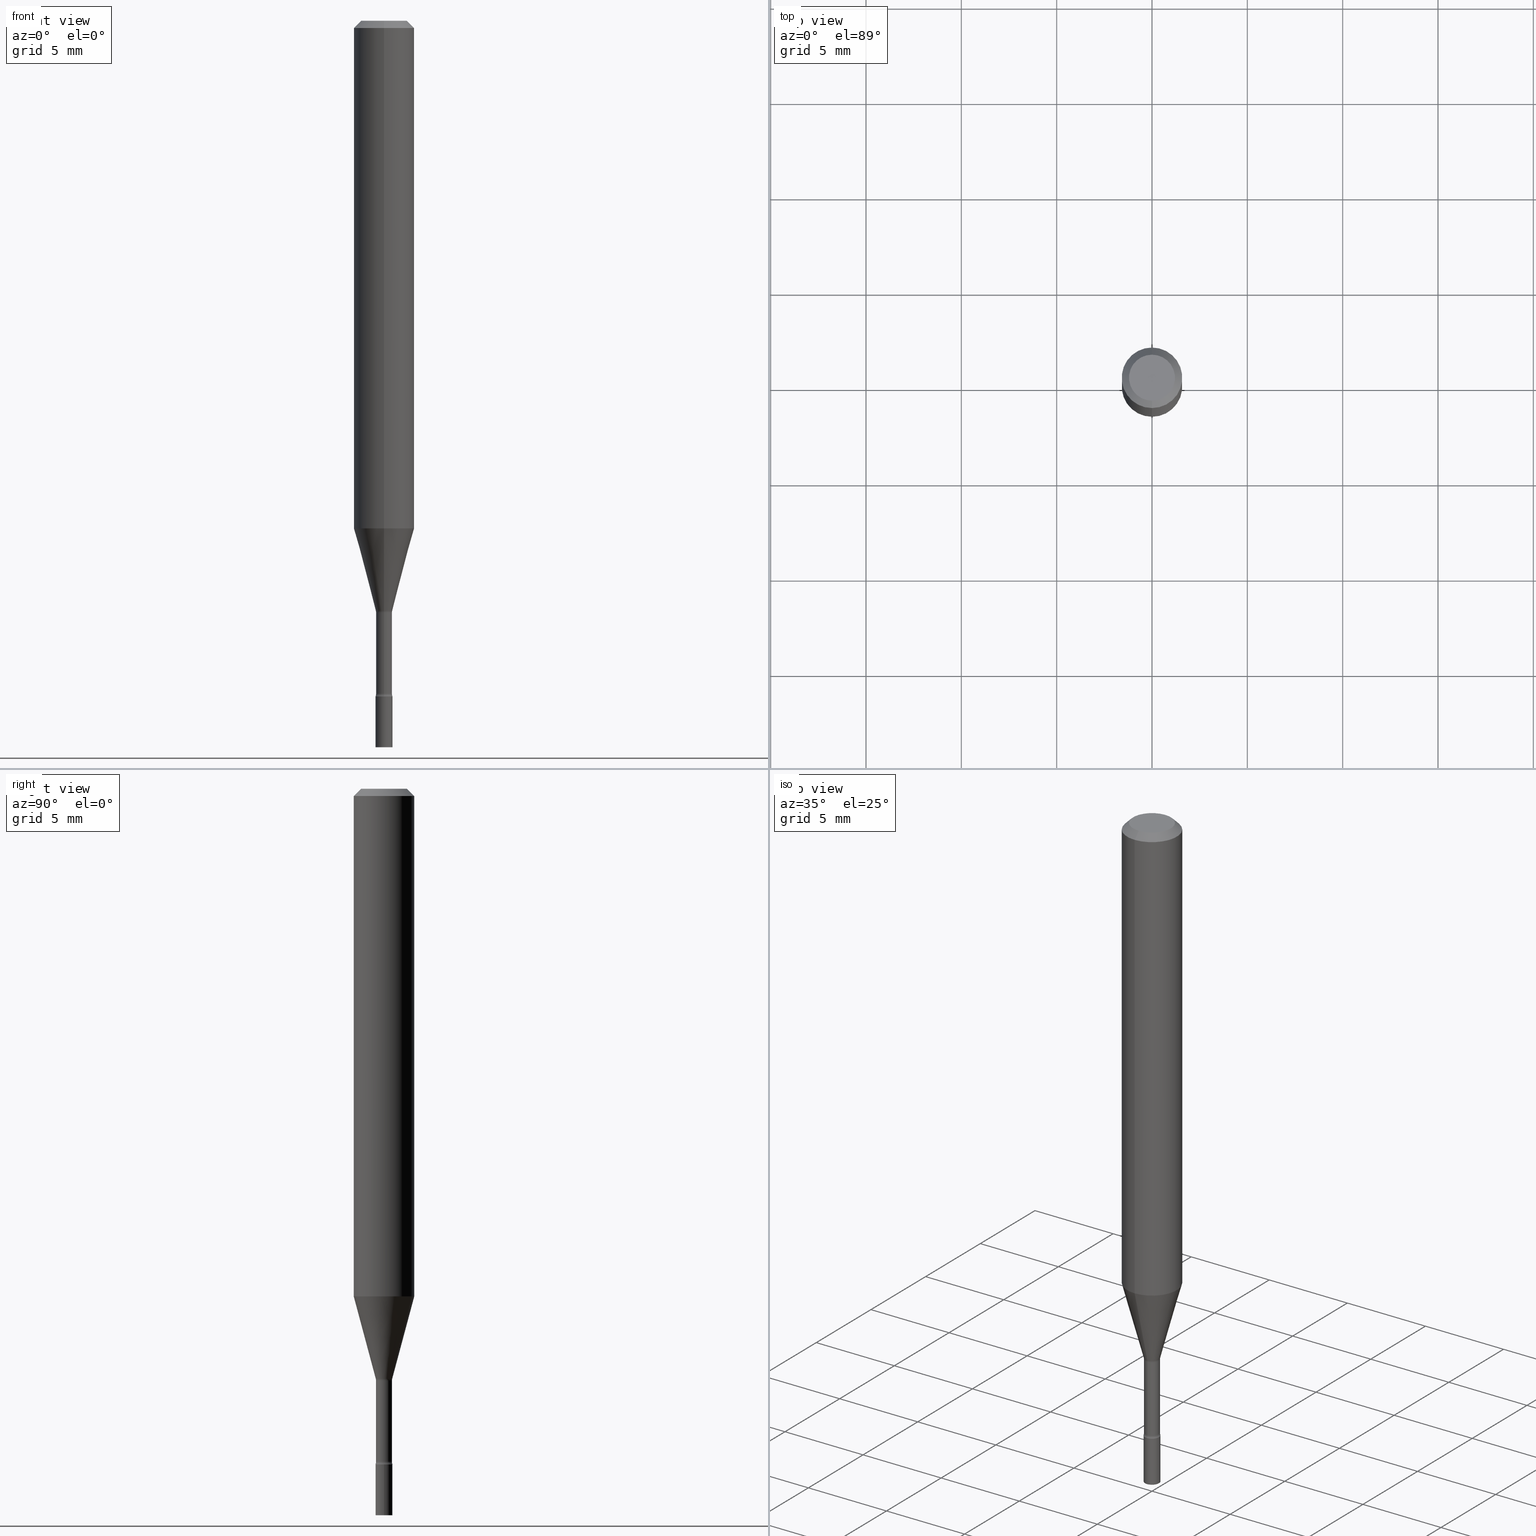
[diagram: canonical four-view strip — front | top / right | iso, engineering-drawing reading convention]
A machine part, canonical four-view strip (front | top / right | iso — engineering-drawing reading convention). The complete STEP part file that produces these views, byte-faithful:
ISO-10303-21;
HEADER;
FILE_DESCRIPTION (( 'STEP AP203' ),
    '1' );
FILE_NAME ('04272.STEP',
    '2024-03-08T22:44:35',
    ( '' ),
    ( '' ),
    'SwSTEP 2.0',
    'SolidWorks 2023',
    '' );
FILE_SCHEMA (( 'CONFIG_CONTROL_DESIGN' ));
ENDSEC;

DATA;
#1 =( LENGTH_UNIT ( ) NAMED_UNIT ( * ) SI_UNIT ( $, .METRE. ) );
#2 = CARTESIAN_POINT ( 'NONE',  ( 2.978778786374188568E-29, -4.252987952059016187E-15, -1.218092501787273241 ) ) ;
#3 = PERSON_AND_ORGANIZATION_ROLE ( 'creator' ) ;
#4 = DIRECTION ( 'NONE',  ( -6.982962677686266711E-15, -1.000000000000000000, 3.491514762482098912E-15 ) ) ;
#5 = AXIS2_PLACEMENT_3D ( 'NONE', #331, #170, #252 ) ;
#6 = APPROVAL_PERSON_ORGANIZATION ( #436, #224, #130 ) ;
#7 = FACE_OUTER_BOUND ( 'NONE', #451, .T. ) ;
#8 = ADVANCED_FACE ( 'NONE', ( #115 ), #124, .T. ) ;
#9 = DIRECTION ( 'NONE',  ( -2.445445466582800548E-29, 3.491514762482098518E-15, 1.000000000000000000 ) ) ;
#10 = LINE ( 'NONE', #336, #354 ) ;
#11 = ORIENTED_EDGE ( 'NONE', *, *, #298, .T. ) ;
#12 = AXIS2_PLACEMENT_3D ( 'NONE', #2, #445, #94 ) ;
#13 = ADVANCED_FACE ( 'NONE', ( #437 ), #71, .T. ) ;
#14 = AXIS2_PLACEMENT_3D ( 'NONE', #175, #92, #291 ) ;
#15 = DATE_TIME_ROLE ( 'classification_date' ) ;
#16 = SECURITY_CLASSIFICATION ( '', '', #39 ) ;
#17 = CARTESIAN_POINT ( 'NONE',  ( 2.988301224687461483E-29, -4.266502166966715248E-15, -1.221974787463810941 ) ) ;
#18 = ORIENTED_EDGE ( 'NONE', *, *, #151, .F. ) ;
#19 = MANIFOLD_SOLID_BREP ( 'Body-Move/Copy2[2]', #286 ) ;
#20 = DIRECTION ( 'NONE',  ( 1.000000000000000000, -6.982962677686265922E-15, 4.876176775795935793E-29 ) ) ;
#21 = VERTEX_POINT ( 'NONE', #481 ) ;
#22 = FACE_OUTER_BOUND ( 'NONE', #499, .T. ) ;
#23 = EDGE_LOOP ( 'NONE', ( #346, #256, #352, #381 ) ) ;
#24 = TOROIDAL_SURFACE ( 'NONE', #335, 0.03144999999999999879, 0.01499999999999998904 ) ;
#25 = DIRECTION ( 'NONE',  ( -2.445445466582800548E-29, 3.491514762482098518E-15, 1.000000000000000000 ) ) ;
#26 = ORIENTED_EDGE ( 'NONE', *, *, #200, .T. ) ;
#27 = EDGE_CURVE ( 'NONE', #374, #390, #50, .T. ) ;
#28 = DIRECTION ( 'NONE',  ( -2.445445466582800548E-29, 3.491514762482098518E-15, 1.000000000000000000 ) ) ;
#29 = EDGE_LOOP ( 'NONE', ( #273, #318, #138, #340 ) ) ;
#30 = DIRECTION ( 'NONE',  ( -6.982962677686265922E-15, -1.000000000000000000, 4.370956789862821150E-15 ) ) ;
#31 = VERTEX_POINT ( 'NONE', #490 ) ;
#32 = EDGE_CURVE ( 'NONE', #21, #31, #311, .T. ) ;
#33 = DIRECTION ( 'NONE',  ( -6.982962677686265922E-15, -1.000000000000000000, 3.491514762482098518E-15 ) ) ;
#34 = AXIS2_PLACEMENT_3D ( 'NONE', #301, #377, #20 ) ;
#35 = ORIENTED_EDGE ( 'NONE', *, *, #59, .T. ) ;
#36 = CARTESIAN_POINT ( 'NONE',  ( 3.668168199874207899E-31, -5.237272143723158550E-17, -0.01500000000000003067 ) ) ;
#37 = ORIENTED_EDGE ( 'NONE', *, *, #440, .T. ) ;
#38 = CYLINDRICAL_SURFACE ( 'NONE', #14, 0.01645000000000003057 ) ;
#39 = SECURITY_CLASSIFICATION_LEVEL ( 'unclassified' ) ;
#40 = FACE_OUTER_BOUND ( 'NONE', #316, .T. ) ;
#41 = AXIS2_PLACEMENT_3D ( 'NONE', #494, #455, #178 ) ;
#42 = EDGE_CURVE ( 'NONE', #278, #198, #285, .T. ) ;
#43 = CC_DESIGN_APPROVAL ( #224, ( #296 ) ) ;
#44 = DIRECTION ( 'NONE',  ( 0.000000000000000000, 0.000000000000000000, 1.000000000000000000 ) ) ;
#45 = FACE_OUTER_BOUND ( 'NONE', #275, .T. ) ;
#46 = CALENDAR_DATE ( 2024, 8, 3 ) ;
#47 = CARTESIAN_POINT ( 'NONE',  ( -4.364351673553916201E-16, -0.06250000000000000000, 2.182196726551311574E-16 ) ) ;
#48 = ADVANCED_FACE ( 'NONE', ( #83 ), #439, .T. ) ;
#49 = DATE_AND_TIME ( #444, #385 ) ;
#50 = LINE ( 'NONE', #47, #63 ) ;
#51 = AXIS2_PLACEMENT_3D ( 'NONE', #364, #325, #167 ) ;
#52 = LOCAL_TIME ( 17, 44, 35.00000000000000000, #363 ) ;
#53 = CALENDAR_DATE ( 2024, 8, 3 ) ;
#54 = PRODUCT ( '04272', '04272', '', ( #91 ) ) ;
#55 = CARTESIAN_POINT ( 'NONE',  ( -0.01750000000000000167, -4.929574259217435954E-15, -1.395000000000000018 ) ) ;
#56 = DATE_AND_TIME ( #53, #111 ) ;
#57 = PLANE ( 'NONE',  #110 ) ;
#58 = ORIENTED_EDGE ( 'NONE', *, *, #246, .F. ) ;
#59 = EDGE_CURVE ( 'NONE', #430, #395, #486, .T. ) ;
#60 = DIRECTION ( 'NONE',  ( -6.982962677686265922E-15, -1.000000000000000000, 3.483106191921935554E-15 ) ) ;
#61 = ORIENTED_EDGE ( 'NONE', *, *, #151, .T. ) ;
#62 = AXIS2_PLACEMENT_3D ( 'NONE', #368, #485, #283 ) ;
#63 = VECTOR ( 'NONE', #329, 39.37007874015748143 ) ;
#64 = CIRCLE ( 'NONE', #143, 0.01645000000000006180 ) ;
#65 = DIRECTION ( 'NONE',  ( -6.982962677686266711E-15, -1.000000000000000000, 3.491514762482098518E-15 ) ) ;
#66 = DIRECTION ( 'NONE',  ( 1.000000000000000000, -6.982962677686248567E-15, 0.000000000000000000 ) ) ;
#67 = ORIENTED_EDGE ( 'NONE', *, *, #142, .F. ) ;
#68 = CC_DESIGN_PERSON_AND_ORGANIZATION_ASSIGNMENT ( #367, #3, ( #161 ) ) ;
#69 = LINE ( 'NONE', #469, #416 ) ;
#70 = ORIENTED_EDGE ( 'NONE', *, *, #361, .T. ) ;
#71 = CONICAL_SURFACE ( 'NONE', #12, 0.01696111260566397771, 0.2617993877991500740 ) ;
#72 = AXIS2_PLACEMENT_3D ( 'NONE', #371, #295, #60 ) ;
#73 = CARTESIAN_POINT ( 'NONE',  ( 3.411396425883006567E-29, -4.870663093662527732E-15, -1.395000000000000018 ) ) ;
#74 = VERTEX_POINT ( 'NONE', #88 ) ;
#75 = DIRECTION ( 'NONE',  ( -2.445445466582800548E-29, 3.491514762482098518E-15, 1.000000000000000000 ) ) ;
#76 = EDGE_LOOP ( 'NONE', ( #412, #102 ) ) ;
#77 = ADVANCED_FACE ( 'NONE', ( #7 ), #400, .T. ) ;
#78 = DIRECTION ( 'NONE',  ( -1.000000000000000000, 6.982962677686265922E-15, -4.883557194083112340E-29 ) ) ;
#79 = ORIENTED_EDGE ( 'NONE', *, *, #208, .T. ) ;
#80 = CARTESIAN_POINT ( 'NONE',  ( 4.440892098500883528E-16, 0.06249999999999993755, -0.01500000000000024751 ) ) ;
#81 = ORIENTED_EDGE ( 'NONE', *, *, #177, .F. ) ;
#82 =( NAMED_UNIT ( * ) PLANE_ANGLE_UNIT ( ) SI_UNIT ( $, .RADIAN. ) );
#83 = FACE_OUTER_BOUND ( 'NONE', #159, .T. ) ;
#84 = APPROVAL_STATUS ( 'not_yet_approved' ) ;
#85 = ADVANCED_FACE ( 'NONE', ( #45 ), #520, .F. ) ;
#86 = DIRECTION ( 'NONE',  ( -2.445445466582800548E-29, 3.491514762482098518E-15, 1.000000000000000000 ) ) ;
#87 = CARTESIAN_POINT ( 'NONE',  ( 2.978778786374188568E-29, -4.252987952059016187E-15, -1.218092501787273241 ) ) ;
#88 = CARTESIAN_POINT ( 'NONE',  ( 3.840629472727447874E-16, 0.04749999999999999362, -1.947592745229184119E-16 ) ) ;
#89 = CIRCLE ( 'NONE', #424, 0.01750000000000000167 ) ;
#90 = TOROIDAL_SURFACE ( 'NONE', #196, 0.03145000000000001267, 0.01499999999999995261 ) ;
#91 = MECHANICAL_CONTEXT ( 'NONE', #281, 'mechanical' ) ;
#92 = DIRECTION ( 'NONE',  ( -2.445445466582800548E-29, 3.491514762482098518E-15, 1.000000000000000000 ) ) ;
#93 = CC_DESIGN_DATE_AND_TIME_ASSIGNMENT ( #56, #15, ( #16 ) ) ;
#94 = DIRECTION ( 'NONE',  ( -6.982962677686266711E-15, -1.000000000000000000, 0.000000000000000000 ) ) ;
#95 = CARTESIAN_POINT ( 'NONE',  ( 3.411428984628265351E-29, -4.870616467686188228E-15, -1.395000000000000018 ) ) ;
#96 = CIRCLE ( 'NONE', #206, 0.01750000000000000167 ) ;
#97 = ADVANCED_FACE ( 'NONE', ( #127 ), #38, .T. ) ;
#98 = PRODUCT_DEFINITION_SHAPE ( 'NONE', 'NONE',  #161 ) ;
#99 = DIRECTION ( 'NONE',  ( -2.445445466582800548E-29, 3.491514762482098518E-15, 1.000000000000000000 ) ) ;
#100 = ORIENTED_EDGE ( 'NONE', *, *, #330, .T. ) ;
#101 = DIRECTION ( 'NONE',  ( -6.982962677686265133E-15, -1.000000000000000000, 3.491514762482098518E-15 ) ) ;
#102 = ORIENTED_EDGE ( 'NONE', *, *, #440, .F. ) ;
#103 = DIRECTION ( 'NONE',  ( -1.807323732225328562E-15, -0.2588190451025179639, 0.9659258262890690894 ) ) ;
#104 = VECTOR ( 'NONE', #103, 39.37007874015748854 ) ;
#105 = DIRECTION ( 'NONE',  ( -2.445445466582800548E-29, 3.491514762482098912E-15, 1.000000000000000000 ) ) ;
#106 = EDGE_CURVE ( 'NONE', #184, #467, #248, .T. ) ;
#107 = CARTESIAN_POINT ( 'NONE',  ( -4.364351673553912750E-16, -0.06250000000000005551, -0.01499999999999981209 ) ) ;
#108 = CARTESIAN_POINT ( 'NONE',  ( 1.205159535236658201E-16, 0.01696111260565972417, -1.218092501787273241 ) ) ;
#109 = VERTEX_POINT ( 'NONE', #245 ) ;
#110 = AXIS2_PLACEMENT_3D ( 'NONE', #339, #219, #225 ) ;
#111 = LOCAL_TIME ( 17, 44, 35.00000000000000000, #218 ) ;
#112 = CARTESIAN_POINT ( 'NONE',  ( 0.000000000000000000, 0.000000000000000000, 0.000000000000000000 ) ) ;
#113 = EDGE_LOOP ( 'NONE', ( #226, #425, #310, #67 ) ) ;
#114 = DIRECTION ( 'NONE',  ( -6.982962677686266711E-15, -1.000000000000000000, 3.491514762482098912E-15 ) ) ;
#115 = FACE_OUTER_BOUND ( 'NONE', #503, .T. ) ;
#116 = DIRECTION ( 'NONE',  ( -2.445445466582800548E-29, 3.491514762482098518E-15, 1.000000000000000000 ) ) ;
#117 = ORIENTED_EDGE ( 'NONE', *, *, #423, .T. ) ;
#118 = PERSON_AND_ORGANIZATION ( #146, #488 ) ;
#119 = ORIENTED_EDGE ( 'NONE', *, *, #27, .T. ) ;
#120 = EDGE_CURVE ( 'NONE', #21, #510, #406, .T. ) ;
#121 = DATE_AND_TIME ( #171, #52 ) ;
#122 = DIRECTION ( 'NONE',  ( 2.438088387897960049E-29, -3.491481338843145188E-15, -1.000000000000000000 ) ) ;
#123 = DIRECTION ( 'NONE',  ( -6.982962677686266711E-15, -1.000000000000000000, 0.000000000000000000 ) ) ;
#124 = PLANE ( 'NONE',  #351 ) ;
#125 = AXIS2_PLACEMENT_3D ( 'NONE', #443, #212, #251 ) ;
#126 = AXIS2_PLACEMENT_3D ( 'NONE', #357, #25, #114 ) ;
#127 = FACE_OUTER_BOUND ( 'NONE', #308, .T. ) ;
#128 = EDGE_CURVE ( 'NONE', #467, #184, #369, .T. ) ;
#129 = AXIS2_PLACEMENT_3D ( 'NONE', #299, #453, #498 ) ;
#130 = APPROVAL_ROLE ( '' ) ;
#131 = CARTESIAN_POINT ( 'NONE',  ( 2.978778786374188568E-29, -4.252987952059016187E-15, -1.218092501787273241 ) ) ;
#132 = CARTESIAN_POINT ( 'NONE',  ( 3.668203209277704895E-29, -5.237222008264718177E-15, -1.500000000000000222 ) ) ;
#133 = FACE_OUTER_BOUND ( 'NONE', #242, .T. ) ;
#134 = APPLICATION_CONTEXT ( 'configuration controlled 3d designs of mechanical parts and assemblies' ) ;
#135 = VECTOR ( 'NONE', #228, 39.37007874015748854 ) ;
#136 = ADVANCED_FACE ( 'NONE', ( #40 ), #207, .T. ) ;
#137 = DIRECTION ( 'NONE',  ( -6.982962677686265922E-15, -1.000000000000000000, 3.483106191921935554E-15 ) ) ;
#138 = ORIENTED_EDGE ( 'NONE', *, *, #233, .F. ) ;
#139 = PLANE ( 'NONE',  #34 ) ;
#140 = DATE_AND_TIME ( #332, #313 ) ;
#141 = DIRECTION ( 'NONE',  ( -2.445468806185136597E-29, 3.491481338843145583E-15, 1.000000000000000000 ) ) ;
#142 = EDGE_CURVE ( 'NONE', #74, #475, #324, .T. ) ;
#143 = AXIS2_PLACEMENT_3D ( 'NONE', #409, #496, #418 ) ;
#144 =( GEOMETRIC_REPRESENTATION_CONTEXT ( 3 ) GLOBAL_UNCERTAINTY_ASSIGNED_CONTEXT ( ( #452 ) ) GLOBAL_UNIT_ASSIGNED_CONTEXT ( ( #209, #82, #328 ) ) REPRESENTATION_CONTEXT ( 'NONE', 'WORKASPACE' ) );
#145 = DIRECTION ( 'NONE',  ( 2.445445466582800548E-29, -3.491514762482098518E-15, -1.000000000000000000 ) ) ;
#146 = PERSON ( 'UNSPECIFIED', 'UNSPECIFIED', 'UNSPECIFIED', ('UNSPECIFIED'), ('UNSPECIFIED'), ('UNSPECIFIED') ) ;
#147 = ORIENTED_EDGE ( 'NONE', *, *, #128, .F. ) ;
#148 = DESIGN_CONTEXT ( 'detailed design', #134, 'design' ) ;
#149 = DIRECTION ( 'NONE',  ( 1.000000000000000000, -6.982962677686265922E-15, 4.876176775795936353E-29 ) ) ;
#150 = ORIENTED_EDGE ( 'NONE', *, *, #168, .T. ) ;
#151 = EDGE_CURVE ( 'NONE', #467, #160, #483, .T. ) ;
#152 = CARTESIAN_POINT ( 'NONE',  ( -4.364351673553661300E-16, -0.06250000000000369149, -1.048139060311453319 ) ) ;
#153 = ORIENTED_EDGE ( 'NONE', *, *, #128, .T. ) ;
#154 = VECTOR ( 'NONE', #249, 39.37007874015748143 ) ;
#155 = AXIS2_PLACEMENT_3D ( 'NONE', #484, #44, #442 ) ;
#156 = FACE_OUTER_BOUND ( 'NONE', #29, .T. ) ;
#157 = ORIENTED_EDGE ( 'NONE', *, *, #411, .T. ) ;
#158 = DIRECTION ( 'NONE',  ( -2.445445466582800548E-29, 3.491514762482098518E-15, 1.000000000000000000 ) ) ;
#159 = EDGE_LOOP ( 'NONE', ( #237, #201, #513, #192 ) ) ;
#160 = VERTEX_POINT ( 'NONE', #55 ) ;
#161 = PRODUCT_DEFINITION ( 'UNKNOWN', '', #296, #148 ) ;
#162 = CARTESIAN_POINT ( 'NONE',  ( -1.148697360479091982E-16, -0.01645000000000426676, -1.221974787463810941 ) ) ;
#163 = AXIS2_PLACEMENT_3D ( 'NONE', #427, #78, #309 ) ;
#164 = CC_DESIGN_SECURITY_CLASSIFICATION ( #16, ( #296 ) ) ;
#165 = CARTESIAN_POINT ( 'NONE',  ( 3.316907271900976096E-16, 0.04749999999999999362, -1.803031128704090443E-16 ) ) ;
#166 = PERSON_AND_ORGANIZATION_ROLE ( 'classification_officer' ) ;
#167 = DIRECTION ( 'NONE',  ( -6.982962677686265922E-15, -1.000000000000000000, 3.491514762482098518E-15 ) ) ;
#168 = EDGE_CURVE ( 'NONE', #510, #319, #407, .T. ) ;
#169 = APPLICATION_PROTOCOL_DEFINITION ( 'international standard', 'config_control_design', 1994, #281 ) ;
#170 = DIRECTION ( 'NONE',  ( -2.445468806185136597E-29, 3.491481338843145583E-15, 1.000000000000000000 ) ) ;
#171 = CALENDAR_DATE ( 2024, 8, 3 ) ;
#172 = AXIS2_PLACEMENT_3D ( 'NONE', #193, #158, #188 ) ;
#173 = DIRECTION ( 'NONE',  ( -6.982962677686266711E-15, -1.000000000000000000, 0.000000000000000000 ) ) ;
#174 = CC_DESIGN_APPROVAL ( #512, ( #16 ) ) ;
#175 = CARTESIAN_POINT ( 'NONE',  ( 0.000000000000000000, 0.000000000000000000, 0.000000000000000000 ) ) ;
#176 = CARTESIAN_POINT ( 'NONE',  ( 1.206146293953111284E-16, 0.01644999999999521151, -1.389486607215153491 ) ) ;
#177 = EDGE_CURVE ( 'NONE', #160, #428, #230, .T. ) ;
#178 = DIRECTION ( 'NONE',  ( -6.982962677686266711E-15, -1.000000000000000000, 0.000000000000000000 ) ) ;
#179 = VECTOR ( 'NONE', #105, 39.37007874015748143 ) ;
#180 = APPROVAL_ROLE ( '' ) ;
#181 = CARTESIAN_POINT ( 'NONE',  ( 1.168842800325366731E-16, 0.01645000000000003057, -5.743541784283063110E-17 ) ) ;
#182 = CC_DESIGN_PERSON_AND_ORGANIZATION_ASSIGNMENT ( #204, #166, ( #16 ) ) ;
#183 = CARTESIAN_POINT ( 'NONE',  ( 3.668168199874207899E-31, -5.237272143723158550E-17, -0.01500000000000003067 ) ) ;
#184 = VERTEX_POINT ( 'NONE', #414 ) ;
#185 = CARTESIAN_POINT ( 'NONE',  ( -3.773273898774340269E-16, -0.04749999999999999362, 1.369346279128809167E-16 ) ) ;
#186 = ORIENTED_EDGE ( 'NONE', *, *, #366, .F. ) ;
#187 = CONICAL_SURFACE ( 'NONE', #479, 0.06250000000000000000, 0.7853981633974483900 ) ;
#188 = DIRECTION ( 'NONE',  ( -6.982962677686266711E-15, -1.000000000000000000, 3.491514762482098912E-15 ) ) ;
#189 = MANIFOLD_SOLID_BREP ( 'Body-Move/Copy2[1]', #247 ) ;
#190 = ORIENTED_EDGE ( 'NONE', *, *, #476, .T. ) ;
#191 = CARTESIAN_POINT ( 'NONE',  ( 0.01750000000000000167, -1.222018468595096625E-16, 8.533309357642889039E-31 ) ) ;
#192 = ORIENTED_EDGE ( 'NONE', *, *, #330, .F. ) ;
#193 = CARTESIAN_POINT ( 'NONE',  ( 7.070350995463433591E-46, -1.009478036371281801E-31, -2.891232330501874758E-17 ) ) ;
#194 = EDGE_LOOP ( 'NONE', ( #300, #258, #387, #454 ) ) ;
#195 = AXIS2_PLACEMENT_3D ( 'NONE', #386, #28, #422 ) ;
#196 = AXIS2_PLACEMENT_3D ( 'NONE', #391, #197, #199 ) ;
#197 = DIRECTION ( 'NONE',  ( -2.445445466582800548E-29, 3.491514762482098518E-15, 1.000000000000000000 ) ) ;
#198 = VERTEX_POINT ( 'NONE', #257 ) ;
#199 = DIRECTION ( 'NONE',  ( -6.982962677686266711E-15, -1.000000000000000000, 3.491514762482098518E-15 ) ) ;
#200 = EDGE_CURVE ( 'NONE', #428, #160, #89, .T. ) ;
#201 = ORIENTED_EDGE ( 'NONE', *, *, #239, .T. ) ;
#202 = PERSON_AND_ORGANIZATION ( #146, #488 ) ;
#203 = CARTESIAN_POINT ( 'NONE',  ( 3.668203209277704895E-29, -5.237222008264718177E-15, -1.500000000000000222 ) ) ;
#204 = PERSON_AND_ORGANIZATION ( #146, #488 ) ;
#205 = AXIS2_PLACEMENT_3D ( 'NONE', #472, #234, #231 ) ;
#206 = AXIS2_PLACEMENT_3D ( 'NONE', #307, #434, #489 ) ;
#207 = CYLINDRICAL_SURFACE ( 'NONE', #51, 0.06250000000000000000 ) ;
#208 = EDGE_CURVE ( 'NONE', #278, #319, #222, .T. ) ;
#209 =( CONVERSION_BASED_UNIT ( 'INCH', #359 ) LENGTH_UNIT ( ) NAMED_UNIT ( #491 ) );
#210 = DIRECTION ( 'NONE',  ( -2.445468806185136877E-29, 3.491481338843145188E-15, 1.000000000000000000 ) ) ;
#211 = DATE_AND_TIME ( #46, #426 ) ;
#212 = DIRECTION ( 'NONE',  ( -1.000000000000000000, 6.982962677686265922E-15, -4.883557194083112340E-29 ) ) ;
#213 = APPROVAL_DATE_TIME ( #49, #224 ) ;
#214 = CONICAL_SURFACE ( 'NONE', #501, 0.06250000000000000000, 0.7853981633974483900 ) ;
#215 = DIRECTION ( 'NONE',  ( -2.445445466582800548E-29, 3.491514762482098518E-15, 1.000000000000000000 ) ) ;
#216 = ADVANCED_FACE ( 'NONE', ( #133 ), #24, .F. ) ;
#217 = ORIENTED_EDGE ( 'NONE', *, *, #106, .T. ) ;
#218 = COORDINATED_UNIVERSAL_TIME_OFFSET ( 5, 0, .BEHIND. ) ;
#219 = DIRECTION ( 'NONE',  ( -2.445445466582799988E-29, 3.491514762482098912E-15, 1.000000000000000000 ) ) ;
#220 = ORIENTED_EDGE ( 'NONE', *, *, #239, .F. ) ;
#221 = APPROVAL_DATE_TIME ( #140, #512 ) ;
#222 = LINE ( 'NONE', #181, #179 ) ;
#223 = AXIS2_PLACEMENT_3D ( 'NONE', #342, #446, #264 ) ;
#224 = APPROVAL ( #84, 'UNSPECIFIED' ) ;
#225 = DIRECTION ( 'NONE',  ( -6.982962677686265922E-15, -1.000000000000000000, 3.491514762482098912E-15 ) ) ;
#226 = ORIENTED_EDGE ( 'NONE', *, *, #349, .F. ) ;
#227 = CARTESIAN_POINT ( 'NONE',  ( 2.988301224687461483E-29, -4.266502166966715248E-15, -1.221974787463810941 ) ) ;
#228 = DIRECTION ( 'NONE',  ( 1.839019923739598738E-15, 0.2588190451025247363, 0.9659258262890673130 ) ) ;
#229 = ORIENTED_EDGE ( 'NONE', *, *, #457, .F. ) ;
#230 = CIRCLE ( 'NONE', #441, 0.01750000000000000167 ) ;
#231 = DIRECTION ( 'NONE',  ( -6.982962677686266711E-15, -1.000000000000000000, 0.000000000000000000 ) ) ;
#232 = ORIENTED_EDGE ( 'NONE', *, *, #120, .F. ) ;
#233 = EDGE_CURVE ( 'NONE', #390, #475, #375, .T. ) ;
#234 = DIRECTION ( 'NONE',  ( -2.445445466582800548E-29, 3.491514762482098518E-15, 1.000000000000000000 ) ) ;
#235 = ORIENTED_EDGE ( 'NONE', *, *, #366, .T. ) ;
#236 = DIRECTION ( 'NONE',  ( -6.982962677686265922E-15, -1.000000000000000000, 4.370956789862821150E-15 ) ) ;
#237 = ORIENTED_EDGE ( 'NONE', *, *, #208, .F. ) ;
#238 = VECTOR ( 'NONE', #466, 39.37007874015748143 ) ;
#239 = EDGE_CURVE ( 'NONE', #278, #21, #64, .T. ) ;
#240 = AXIS2_PLACEMENT_3D ( 'NONE', #87, #321, #123 ) ;
#241 = CARTESIAN_POINT ( 'NONE',  ( 0.01750000000000000167, -4.992818314545698211E-15, -1.395000000000000018 ) ) ;
#242 = EDGE_LOOP ( 'NONE', ( #305, #280, #100, #229 ) ) ;
#243 = PERSON_AND_ORGANIZATION ( #146, #488 ) ;
#244 = DIRECTION ( 'NONE',  ( -2.445445466582800548E-29, 3.491514762482098912E-15, 1.000000000000000000 ) ) ;
#245 = CARTESIAN_POINT ( 'NONE',  ( 4.440892098500881555E-16, 0.06249999999999632933, -1.048139060311453985 ) ) ;
#246 = EDGE_CURVE ( 'NONE', #430, #319, #294, .T. ) ;
#247 = CLOSED_SHELL ( 'NONE', ( #77, #334, #493, #8 ) ) ;
#248 = CIRCLE ( 'NONE', #312, 0.01750000000000000167 ) ;
#249 = DIRECTION ( 'NONE',  ( 4.937700262164548042E-15, 0.7071067811865451302, -0.7071067811865499042 ) ) ;
#250 = APPROVAL_ROLE ( '' ) ;
#251 = DIRECTION ( 'NONE',  ( -6.982962677686261977E-15, -1.000000000000000000, 0.000000000000000000 ) ) ;
#252 = DIRECTION ( 'NONE',  ( 1.000000000000000000, -6.982962677686265922E-15, 4.876176775795936353E-29 ) ) ;
#253 = ADVANCED_FACE ( 'NONE', ( #293 ), #262, .F. ) ;
#254 = DIRECTION ( 'NONE',  ( -2.445445466582800548E-29, 3.491514762482098518E-15, 1.000000000000000000 ) ) ;
#255 = LINE ( 'NONE', #373, #104 ) ;
#256 = ORIENTED_EDGE ( 'NONE', *, *, #411, .F. ) ;
#257 = CARTESIAN_POINT ( 'NONE',  ( 1.243449787580514900E-16, 0.01749999999999510628, -1.395000000000000018 ) ) ;
#258 = ORIENTED_EDGE ( 'NONE', *, *, #388, .F. ) ;
#259 = CC_DESIGN_PERSON_AND_ORGANIZATION_ASSIGNMENT ( #202, #396, ( #54 ) ) ;
#260 = DIRECTION ( 'NONE',  ( 1.000000000000000000, -6.982962677686248567E-15, 0.000000000000000000 ) ) ;
#261 = AXIS2_PLACEMENT_3D ( 'NONE', #370, #86, #4 ) ;
#262 = TOROIDAL_SURFACE ( 'NONE', #432, 0.03145000000000001267, 0.01499999999999995261 ) ;
#263 = APPROVAL_PERSON_ORGANIZATION ( #297, #512, #180 ) ;
#264 = DIRECTION ( 'NONE',  ( 7.105427357600997914E-15, 1.000000000000000000, 0.000000000000000000 ) ) ;
#265 = DIRECTION ( 'NONE',  ( 6.982962677686265922E-15, 1.000000000000000000, -3.483106191921935554E-15 ) ) ;
#266 = ORIENTED_EDGE ( 'NONE', *, *, #42, .T. ) ;
#267 = EDGE_CURVE ( 'NONE', #475, #390, #288, .T. ) ;
#268 = DIRECTION ( 'NONE',  ( -4.851104656540964275E-15, -0.7071067811865500152, -0.7071067811865450192 ) ) ;
#269 = ORIENTED_EDGE ( 'NONE', *, *, #388, .T. ) ;
#270 = AXIS2_PLACEMENT_3D ( 'NONE', #183, #254, #137 ) ;
#271 = APPROVAL_PERSON_ORGANIZATION ( #243, #403, #250 ) ;
#272 = CYLINDRICAL_SURFACE ( 'NONE', #495, 0.06250000000000000000 ) ;
#273 = ORIENTED_EDGE ( 'NONE', *, *, #468, .T. ) ;
#274 = CARTESIAN_POINT ( 'NONE',  ( 2.823025816868771357E-16, 0.01696111260565972764, -1.218092501787273241 ) ) ;
#275 = EDGE_LOOP ( 'NONE', ( #269, #384 ) ) ;
#276 = CC_DESIGN_PERSON_AND_ORGANIZATION_ASSIGNMENT ( #477, #519, ( #296 ) ) ;
#277 = CARTESIAN_POINT ( 'NONE',  ( 0.000000000000000000, 0.000000000000000000, 0.000000000000000000 ) ) ;
#278 = VERTEX_POINT ( 'NONE', #176 ) ;
#279 = AXIS2_PLACEMENT_3D ( 'NONE', #73, #304, #317 ) ;
#280 = ORIENTED_EDGE ( 'NONE', *, *, #246, .T. ) ;
#281 = APPLICATION_CONTEXT ( 'configuration controlled 3d designs of mechanical parts and assemblies' ) ;
#282 = DATE_TIME_ROLE ( 'creation_date' ) ;
#283 = DIRECTION ( 'NONE',  ( 7.105427357600997914E-15, 1.000000000000000000, 0.000000000000000000 ) ) ;
#284 = CARTESIAN_POINT ( 'NONE',  ( -0.01750000000000000167, 1.243449787580175444E-16, -8.608136407946085539E-31 ) ) ;
#285 = CIRCLE ( 'NONE', #62, 0.01499999999999995608 ) ;
#286 = CLOSED_SHELL ( 'NONE', ( #216, #97, #482, #433, #344, #13, #518, #136, #448, #85, #306, #253, #48, #292 ) ) ;
#287 = APPLICATION_PROTOCOL_DEFINITION ( 'international standard', 'config_control_design', 1994, #134 ) ;
#288 = CIRCLE ( 'NONE', #72, 0.06250000000000000000 ) ;
#289 = CARTESIAN_POINT ( 'NONE',  ( 4.364351673553919652E-16, 0.06249999999999995143, -0.01500000000000024751 ) ) ;
#290 = COORDINATED_UNIVERSAL_TIME_OFFSET ( 5, 0, .BEHIND. ) ;
#291 = DIRECTION ( 'NONE',  ( -6.982962677686266711E-15, -1.000000000000000000, 3.491514762482098912E-15 ) ) ;
#292 = ADVANCED_FACE ( 'NONE', ( #302 ), #327, .F. ) ;
#293 = FACE_OUTER_BOUND ( 'NONE', #23, .T. ) ;
#294 = CIRCLE ( 'NONE', #223, 0.01499999999999999424 ) ;
#295 = DIRECTION ( 'NONE',  ( -2.445445466582800548E-29, 3.491514762482098518E-15, 1.000000000000000000 ) ) ;
#296 = PRODUCT_DEFINITION_FORMATION_WITH_SPECIFIED_SOURCE ( 'ANY', '', #54, .NOT_KNOWN. ) ;
#297 = PERSON_AND_ORGANIZATION ( #146, #488 ) ;
#298 = EDGE_CURVE ( 'NONE', #395, #374, #255, .T. ) ;
#299 = CARTESIAN_POINT ( 'NONE',  ( 2.988272704281857866E-29, -4.266543009810820460E-15, -1.221974787463810941 ) ) ;
#300 = ORIENTED_EDGE ( 'NONE', *, *, #379, .F. ) ;
#301 = CARTESIAN_POINT ( 'NONE',  ( 3.411428984628265351E-29, -4.870616467686188228E-15, -1.395000000000000018 ) ) ;
#302 = FACE_OUTER_BOUND ( 'NONE', #463, .T. ) ;
#303 = VECTOR ( 'NONE', #210, 39.37007874015748143 ) ;
#304 = DIRECTION ( 'NONE',  ( -2.445445466582800548E-29, 3.491514762482098518E-15, 1.000000000000000000 ) ) ;
#305 = ORIENTED_EDGE ( 'NONE', *, *, #59, .F. ) ;
#306 = ADVANCED_FACE ( 'NONE', ( #410 ), #57, .F. ) ;
#307 = CARTESIAN_POINT ( 'NONE',  ( 3.411396425883006567E-29, -4.870663093662527732E-15, -1.395000000000000018 ) ) ;
#308 = EDGE_LOOP ( 'NONE', ( #157, #79, #456, #232 ) ) ;
#309 = DIRECTION ( 'NONE',  ( -6.982962677686262766E-15, -1.000000000000000000, 0.000000000000000000 ) ) ;
#310 = ORIENTED_EDGE ( 'NONE', *, *, #233, .T. ) ;
#311 = CIRCLE ( 'NONE', #125, 0.01499999999999995608 ) ;
#312 = AXIS2_PLACEMENT_3D ( 'NONE', #132, #402, #365 ) ;
#313 = LOCAL_TIME ( 17, 44, 35.00000000000000000, #413 ) ;
#314 = DIRECTION ( 'NONE',  ( -2.445445466582800548E-29, 3.491514762482098518E-15, 1.000000000000000000 ) ) ;
#315 = CC_DESIGN_DATE_AND_TIME_ASSIGNMENT ( #121, #282, ( #161 ) ) ;
#316 = EDGE_LOOP ( 'NONE', ( #348, #190, #119, #465 ) ) ;
#317 = DIRECTION ( 'NONE',  ( -6.982962677686265922E-15, -1.000000000000000000, 0.000000000000000000 ) ) ;
#318 = ORIENTED_EDGE ( 'NONE', *, *, #323, .T. ) ;
#319 = VERTEX_POINT ( 'NONE', #462 ) ;
#320 = CIRCLE ( 'NONE', #205, 0.01696111260566397771 ) ;
#321 = DIRECTION ( 'NONE',  ( -2.445445466582800548E-29, 3.491514762482098518E-15, 1.000000000000000000 ) ) ;
#322 = DIRECTION ( 'NONE',  ( 1.000000000000000000, -6.982962677686248567E-15, 0.000000000000000000 ) ) ;
#323 = EDGE_CURVE ( 'NONE', #109, #475, #10, .T. ) ;
#324 = LINE ( 'NONE', #289, #154 ) ;
#325 = DIRECTION ( 'NONE',  ( -2.445445466582800548E-29, 3.491514762482098518E-15, 1.000000000000000000 ) ) ;
#326 = AXIS2_PLACEMENT_3D ( 'NONE', #131, #215, #173 ) ;
#327 = TOROIDAL_SURFACE ( 'NONE', #362, 0.03144999999999999879, 0.01499999999999998904 ) ;
#328 =( NAMED_UNIT ( * ) SI_UNIT ( $, .STERADIAN. ) SOLID_ANGLE_UNIT ( ) );
#329 = DIRECTION ( 'NONE',  ( -2.445445466582800548E-29, 3.491514762482098912E-15, 1.000000000000000000 ) ) ;
#330 = EDGE_CURVE ( 'NONE', #319, #510, #470, .T. ) ;
#331 = CARTESIAN_POINT ( 'NONE',  ( 0.000000000000000000, 0.000000000000000000, 0.000000000000000000 ) ) ;
#332 = CALENDAR_DATE ( 2024, 8, 3 ) ;
#333 = DIRECTION ( 'NONE',  ( -2.445468806185136597E-29, 3.491481338843145583E-15, 1.000000000000000000 ) ) ;
#334 = ADVANCED_FACE ( 'NONE', ( #22 ), #139, .T. ) ;
#335 = AXIS2_PLACEMENT_3D ( 'NONE', #17, #9, #502 ) ;
#336 = CARTESIAN_POINT ( 'NONE',  ( 4.440892098500625669E-16, 0.06250000000000000000, -2.182196726551311574E-16 ) ) ;
#337 = CONICAL_SURFACE ( 'NONE', #240, 0.01696111260566397771, 0.2617993877991500740 ) ;
#338 = VERTEX_POINT ( 'NONE', #185 ) ;
#339 = CARTESIAN_POINT ( 'NONE',  ( 1.222018468595437807E-16, 0.01749999999999513056, -1.395000000000000018 ) ) ;
#340 = ORIENTED_EDGE ( 'NONE', *, *, #27, .F. ) ;
#341 = CARTESIAN_POINT ( 'NONE',  ( 3.411428984628265351E-29, -4.870616467686188228E-15, -1.395000000000000018 ) ) ;
#342 = CARTESIAN_POINT ( 'NONE',  ( 2.234656903965813287E-16, 0.03144999999999573137, -1.221974787463811163 ) ) ;
#343 = CIRCLE ( 'NONE', #163, 0.01499999999999999424 ) ;
#344 = ADVANCED_FACE ( 'NONE', ( #156 ), #272, .T. ) ;
#345 = CARTESIAN_POINT ( 'NONE',  ( 3.668168199874207899E-31, -5.237272143723158550E-17, -0.01500000000000003067 ) ) ;
#346 = ORIENTED_EDGE ( 'NONE', *, *, #42, .F. ) ;
#347 = DIRECTION ( 'NONE',  ( 2.445445466582800548E-29, -3.491514762482098518E-15, -1.000000000000000000 ) ) ;
#348 = ORIENTED_EDGE ( 'NONE', *, *, #323, .F. ) ;
#349 = EDGE_CURVE ( 'NONE', #338, #74, #353, .T. ) ;
#350 = DIRECTION ( 'NONE',  ( -2.445468806185136597E-29, 3.491481338843145583E-15, 1.000000000000000000 ) ) ;
#351 = AXIS2_PLACEMENT_3D ( 'NONE', #405, #122, #435 ) ;
#352 = ORIENTED_EDGE ( 'NONE', *, *, #32, .T. ) ;
#353 = CIRCLE ( 'NONE', #172, 0.04749999999999999362 ) ;
#354 = VECTOR ( 'NONE', #380, 39.37007874015748143 ) ;
#355 = CARTESIAN_POINT ( 'NONE',  ( -1.184388162973558367E-16, -0.01696111260566823126, -1.218092501787273241 ) ) ;
#356 = ORIENTED_EDGE ( 'NONE', *, *, #32, .F. ) ;
#357 = CARTESIAN_POINT ( 'NONE',  ( 7.070350995463433591E-46, -1.009478036371281801E-31, -2.891232330501874758E-17 ) ) ;
#358 = ORIENTED_EDGE ( 'NONE', *, *, #423, .F. ) ;
#359 = LENGTH_MEASURE_WITH_UNIT ( LENGTH_MEASURE( 0.02539999999999999897 ), #1 );
#360 = DIRECTION ( 'NONE',  ( 2.445445466582799988E-29, -3.491514762482098912E-15, -1.000000000000000000 ) ) ;
#361 = EDGE_CURVE ( 'NONE', #395, #430, #320, .T. ) ;
#362 = AXIS2_PLACEMENT_3D ( 'NONE', #227, #99, #101 ) ;
#363 = COORDINATED_UNIVERSAL_TIME_OFFSET ( 5, 0, .BEHIND. ) ;
#364 = CARTESIAN_POINT ( 'NONE',  ( 0.000000000000000000, 0.000000000000000000, 0.000000000000000000 ) ) ;
#365 = DIRECTION ( 'NONE',  ( 1.000000000000000000, -6.982962677686248567E-15, 0.000000000000000000 ) ) ;
#366 = EDGE_CURVE ( 'NONE', #430, #109, #511, .T. ) ;
#367 = PERSON_AND_ORGANIZATION ( #146, #488 ) ;
#368 = CARTESIAN_POINT ( 'NONE',  ( 2.234656903965855688E-16, 0.03144999999999516238, -1.389486607215153491 ) ) ;
#369 = CIRCLE ( 'NONE', #487, 0.01750000000000000167 ) ;
#370 = CARTESIAN_POINT ( 'NONE',  ( 0.000000000000000000, 0.000000000000000000, 0.000000000000000000 ) ) ;
#371 = CARTESIAN_POINT ( 'NONE',  ( 3.668168199874207899E-31, -5.237272143723158550E-17, -0.01500000000000003067 ) ) ;
#372 = ORIENTED_EDGE ( 'NONE', *, *, #200, .F. ) ;
#373 = CARTESIAN_POINT ( 'NONE',  ( -1.184388162973558367E-16, -0.01696111260566823126, -1.218092501787273241 ) ) ;
#374 = VERTEX_POINT ( 'NONE', #152 ) ;
#375 = CIRCLE ( 'NONE', #270, 0.06250000000000000000 ) ;
#376 = ORIENTED_EDGE ( 'NONE', *, *, #298, .F. ) ;
#377 = DIRECTION ( 'NONE',  ( -2.438088387897960049E-29, 3.491481338843145188E-15, 1.000000000000000000 ) ) ;
#378 = ADVANCED_BREP_SHAPE_REPRESENTATION ( '04272', ( #189, #19, #155 ), #144 ) ;
#379 = EDGE_CURVE ( 'NONE', #338, #390, #69, .T. ) ;
#380 = DIRECTION ( 'NONE',  ( -2.445445466582800548E-29, 3.491514762482098912E-15, 1.000000000000000000 ) ) ;
#381 = ORIENTED_EDGE ( 'NONE', *, *, #506, .T. ) ;
#382 = FACE_OUTER_BOUND ( 'NONE', #194, .T. ) ;
#383 = CIRCLE ( 'NONE', #279, 0.01750000000000000167 ) ;
#384 = ORIENTED_EDGE ( 'NONE', *, *, #349, .T. ) ;
#385 = LOCAL_TIME ( 17, 44, 35.00000000000000000, #290 ) ;
#386 = CARTESIAN_POINT ( 'NONE',  ( 3.397913724491813318E-29, -4.851413001362873898E-15, -1.389486607215153491 ) ) ;
#387 = ORIENTED_EDGE ( 'NONE', *, *, #142, .T. ) ;
#388 = EDGE_CURVE ( 'NONE', #74, #338, #393, .T. ) ;
#389 = FACE_OUTER_BOUND ( 'NONE', #471, .T. ) ;
#390 = VERTEX_POINT ( 'NONE', #107 ) ;
#391 = CARTESIAN_POINT ( 'NONE',  ( 3.397946154556677144E-29, -4.851366559664184684E-15, -1.389486607215153491 ) ) ;
#392 = ORIENTED_EDGE ( 'NONE', *, *, #468, .F. ) ;
#393 = CIRCLE ( 'NONE', #126, 0.04749999999999999362 ) ;
#394 = FACE_OUTER_BOUND ( 'NONE', #497, .T. ) ;
#395 = VERTEX_POINT ( 'NONE', #355 ) ;
#396 = PERSON_AND_ORGANIZATION_ROLE ( 'design_owner' ) ;
#397 = PRODUCT_RELATED_PRODUCT_CATEGORY ( 'detail', '', ( #54 ) ) ;
#398 = DIRECTION ( 'NONE',  ( 6.982962677686265922E-15, 1.000000000000000000, -3.491514762482098912E-15 ) ) ;
#399 = PERSON_AND_ORGANIZATION_ROLE ( 'design_supplier' ) ;
#400 = CYLINDRICAL_SURFACE ( 'NONE', #5, 0.01750000000000000167 ) ;
#401 = VECTOR ( 'NONE', #244, 39.37007874015748143 ) ;
#402 = DIRECTION ( 'NONE',  ( -2.445468806185136597E-29, 3.491481338843145583E-15, 1.000000000000000000 ) ) ;
#403 = APPROVAL ( #515, 'UNSPECIFIED' ) ;
#404 = COORDINATED_UNIVERSAL_TIME_OFFSET ( 5, 0, .BEHIND. ) ;
#405 = CARTESIAN_POINT ( 'NONE',  ( 1.222018468595463445E-16, 0.01749999999999476280, -1.499999999999999778 ) ) ;
#406 = LINE ( 'NONE', #492, #401 ) ;
#407 = CIRCLE ( 'NONE', #41, 0.01644999999999999934 ) ;
#408 = AXIS2_PLACEMENT_3D ( 'NONE', #112, #350, #149 ) ;
#409 = CARTESIAN_POINT ( 'NONE',  ( 3.397913724491813318E-29, -4.851413001362873898E-15, -1.389486607215153491 ) ) ;
#410 = FACE_OUTER_BOUND ( 'NONE', #76, .T. ) ;
#411 = EDGE_CURVE ( 'NONE', #21, #278, #460, .T. ) ;
#412 = ORIENTED_EDGE ( 'NONE', *, *, #506, .F. ) ;
#413 = COORDINATED_UNIVERSAL_TIME_OFFSET ( 5, 0, .BEHIND. ) ;
#414 = CARTESIAN_POINT ( 'NONE',  ( 0.01750000000000000167, -5.359423855124228160E-15, -1.500000000000000222 ) ) ;
#415 = EDGE_LOOP ( 'NONE', ( #186, #35, #11, #431 ) ) ;
#416 = VECTOR ( 'NONE', #268, 39.37007874015748143 ) ;
#417 = AXIS2_PLACEMENT_3D ( 'NONE', #509, #75, #30 ) ;
#418 = DIRECTION ( 'NONE',  ( -6.982962677686266711E-15, -1.000000000000000000, 0.000000000000000000 ) ) ;
#419 = CC_DESIGN_PERSON_AND_ORGANIZATION_ASSIGNMENT ( #118, #399, ( #296 ) ) ;
#420 = DIRECTION ( 'NONE',  ( -2.445445466582800548E-29, 3.491514762482098518E-15, 1.000000000000000000 ) ) ;
#421 = CYLINDRICAL_SURFACE ( 'NONE', #408, 0.01750000000000000167 ) ;
#422 = DIRECTION ( 'NONE',  ( -6.982962677686266711E-15, -1.000000000000000000, 0.000000000000000000 ) ) ;
#423 = EDGE_CURVE ( 'NONE', #184, #428, #507, .T. ) ;
#424 = AXIS2_PLACEMENT_3D ( 'NONE', #95, #141, #66 ) ;
#425 = ORIENTED_EDGE ( 'NONE', *, *, #379, .T. ) ;
#426 = LOCAL_TIME ( 17, 44, 35.00000000000000000, #404 ) ;
#427 = CARTESIAN_POINT ( 'NONE',  ( -2.196141762132031595E-16, -0.03145000000000426621, -1.221974787463810941 ) ) ;
#428 = VERTEX_POINT ( 'NONE', #241 ) ;
#429 = FACE_OUTER_BOUND ( 'NONE', #113, .T. ) ;
#430 = VERTEX_POINT ( 'NONE', #274 ) ;
#431 = ORIENTED_EDGE ( 'NONE', *, *, #476, .F. ) ;
#432 = AXIS2_PLACEMENT_3D ( 'NONE', #500, #420, #65 ) ;
#433 = ADVANCED_FACE ( 'NONE', ( #429 ), #214, .T. ) ;
#434 = DIRECTION ( 'NONE',  ( -2.445445466582800548E-29, 3.491514762482098518E-15, 1.000000000000000000 ) ) ;
#435 = DIRECTION ( 'NONE',  ( -1.000000000000000000, 6.982962677686265922E-15, -4.876176775795935793E-29 ) ) ;
#436 = PERSON_AND_ORGANIZATION ( #146, #488 ) ;
#437 = FACE_OUTER_BOUND ( 'NONE', #514, .T. ) ;
#438 = FACE_OUTER_BOUND ( 'NONE', #415, .T. ) ;
#439 = CYLINDRICAL_SURFACE ( 'NONE', #261, 0.01645000000000003057 ) ;
#440 = EDGE_CURVE ( 'NONE', #198, #31, #383, .T. ) ;
#441 = AXIS2_PLACEMENT_3D ( 'NONE', #341, #333, #260 ) ;
#442 = DIRECTION ( 'NONE',  ( 1.000000000000000000, 0.000000000000000000, 0.000000000000000000 ) ) ;
#443 = CARTESIAN_POINT ( 'NONE',  ( -2.196141762131991905E-16, -0.03145000000000486989, -1.389486607215153491 ) ) ;
#444 = CALENDAR_DATE ( 2024, 8, 3 ) ;
#445 = DIRECTION ( 'NONE',  ( -2.445445466582800548E-29, 3.491514762482098518E-15, 1.000000000000000000 ) ) ;
#446 = DIRECTION ( 'NONE',  ( 1.000000000000000000, -7.105427357601001070E-15, 4.926315917863606957E-29 ) ) ;
#447 = CIRCLE ( 'NONE', #517, 0.06250000000000000000 ) ;
#448 = ADVANCED_FACE ( 'NONE', ( #382 ), #187, .T. ) ;
#449 = APPROVAL_STATUS ( 'not_yet_approved' ) ;
#450 = CC_DESIGN_APPROVAL ( #403, ( #161 ) ) ;
#451 = EDGE_LOOP ( 'NONE', ( #217, #61, #372, #358 ) ) ;
#452 = UNCERTAINTY_MEASURE_WITH_UNIT (LENGTH_MEASURE( 1.000000000000000082E-05 ), #209, 'distance_accuracy_value', 'NONE');
#453 = DIRECTION ( 'NONE',  ( -2.445445466582800548E-29, 3.491514762482098518E-15, 1.000000000000000000 ) ) ;
#454 = ORIENTED_EDGE ( 'NONE', *, *, #267, .T. ) ;
#455 = DIRECTION ( 'NONE',  ( -2.445445466582800548E-29, 3.491514762482098518E-15, 1.000000000000000000 ) ) ;
#456 = ORIENTED_EDGE ( 'NONE', *, *, #168, .F. ) ;
#457 = EDGE_CURVE ( 'NONE', #395, #510, #343, .T. ) ;
#458 = AXIS2_PLACEMENT_3D ( 'NONE', #165, #360, #398 ) ;
#459 = SHAPE_DEFINITION_REPRESENTATION ( #98, #378 ) ;
#460 = CIRCLE ( 'NONE', #195, 0.01645000000000006180 ) ;
#461 = CIRCLE ( 'NONE', #417, 0.06250000000000000000 ) ;
#462 = CARTESIAN_POINT ( 'NONE',  ( 1.168842800325705942E-16, 0.01644999999999573539, -1.221974787463810941 ) ) ;
#463 = EDGE_LOOP ( 'NONE', ( #58, #473, #505, #150 ) ) ;
#464 = DIRECTION ( 'NONE',  ( 6.982962677686265922E-15, 1.000000000000000000, -3.483106191921935554E-15 ) ) ;
#465 = ORIENTED_EDGE ( 'NONE', *, *, #267, .F. ) ;
#466 = DIRECTION ( 'NONE',  ( -2.445468806185136877E-29, 3.491481338843145188E-15, 1.000000000000000000 ) ) ;
#467 = VERTEX_POINT ( 'NONE', #504 ) ;
#468 = EDGE_CURVE ( 'NONE', #374, #109, #447, .T. ) ;
#469 = CARTESIAN_POINT ( 'NONE',  ( -4.287811248607203282E-16, -0.06250000000000005551, -0.01499999999999981209 ) ) ;
#470 = CIRCLE ( 'NONE', #129, 0.01644999999999999934 ) ;
#471 = EDGE_LOOP ( 'NONE', ( #220, #266, #37, #356 ) ) ;
#472 = CARTESIAN_POINT ( 'NONE',  ( 2.978778786374188568E-29, -4.252987952059016187E-15, -1.218092501787273241 ) ) ;
#473 = ORIENTED_EDGE ( 'NONE', *, *, #361, .F. ) ;
#474 = CARTESIAN_POINT ( 'NONE',  ( 2.563166913387000657E-29, -3.659593002211555203E-15, -1.048139060311453763 ) ) ;
#475 = VERTEX_POINT ( 'NONE', #80 ) ;
#476 = EDGE_CURVE ( 'NONE', #109, #374, #461, .T. ) ;
#477 = PERSON_AND_ORGANIZATION ( #146, #488 ) ;
#478 = ORIENTED_EDGE ( 'NONE', *, *, #106, .F. ) ;
#479 = AXIS2_PLACEMENT_3D ( 'NONE', #36, #347, #464 ) ;
#480 = APPROVAL_DATE_TIME ( #211, #403 ) ;
#481 = CARTESIAN_POINT ( 'NONE',  ( -1.148697360479055251E-16, -0.01645000000000491208, -1.389486607215153491 ) ) ;
#482 = ADVANCED_FACE ( 'NONE', ( #389 ), #90, .F. ) ;
#483 = LINE ( 'NONE', #284, #303 ) ;
#484 = CARTESIAN_POINT ( 'NONE',  ( 0.000000000000000000, 0.000000000000000000, 0.000000000000000000 ) ) ;
#485 = DIRECTION ( 'NONE',  ( 1.000000000000000000, -7.105427357601001070E-15, 4.926315917863606957E-29 ) ) ;
#486 = CIRCLE ( 'NONE', #326, 0.01696111260566397771 ) ;
#487 = AXIS2_PLACEMENT_3D ( 'NONE', #203, #516, #322 ) ;
#488 = ORGANIZATION ( 'UNSPECIFIED', 'UNSPECIFIED', '' ) ;
#489 = DIRECTION ( 'NONE',  ( -6.982962677686265922E-15, -1.000000000000000000, 0.000000000000000000 ) ) ;
#490 = CARTESIAN_POINT ( 'NONE',  ( -1.222018468594753717E-16, -0.01750000000000484848, -1.395000000000000018 ) ) ;
#491 = DIMENSIONAL_EXPONENTS ( 1.000000000000000000, 0.000000000000000000, 0.000000000000000000, 0.000000000000000000, 0.000000000000000000, 0.000000000000000000, 0.000000000000000000 ) ;
#492 = CARTESIAN_POINT ( 'NONE',  ( -1.148697360479392982E-16, -0.01645000000000003057, 5.743541784283063110E-17 ) ) ;
#493 = ADVANCED_FACE ( 'NONE', ( #394 ), #421, .T. ) ;
#494 = CARTESIAN_POINT ( 'NONE',  ( 2.988272704281857866E-29, -4.266543009810820460E-15, -1.221974787463810941 ) ) ;
#495 = AXIS2_PLACEMENT_3D ( 'NONE', #277, #314, #33 ) ;
#496 = DIRECTION ( 'NONE',  ( -2.445445466582800548E-29, 3.491514762482098518E-15, 1.000000000000000000 ) ) ;
#497 = EDGE_LOOP ( 'NONE', ( #18, #153, #117, #81 ) ) ;
#498 = DIRECTION ( 'NONE',  ( -6.982962677686266711E-15, -1.000000000000000000, 0.000000000000000000 ) ) ;
#499 = EDGE_LOOP ( 'NONE', ( #26, #508 ) ) ;
#500 = CARTESIAN_POINT ( 'NONE',  ( 3.397946154556677144E-29, -4.851366559664184684E-15, -1.389486607215153491 ) ) ;
#501 = AXIS2_PLACEMENT_3D ( 'NONE', #345, #145, #265 ) ;
#502 = DIRECTION ( 'NONE',  ( -6.982962677686265133E-15, -1.000000000000000000, 3.491514762482098518E-15 ) ) ;
#503 = EDGE_LOOP ( 'NONE', ( #478, #147 ) ) ;
#504 = CARTESIAN_POINT ( 'NONE',  ( -0.01750000000000000167, -4.929574259217435954E-15, -1.500000000000000222 ) ) ;
#505 = ORIENTED_EDGE ( 'NONE', *, *, #457, .T. ) ;
#506 = EDGE_CURVE ( 'NONE', #31, #198, #96, .T. ) ;
#507 = LINE ( 'NONE', #191, #238 ) ;
#508 = ORIENTED_EDGE ( 'NONE', *, *, #177, .T. ) ;
#509 = CARTESIAN_POINT ( 'NONE',  ( 2.563166913387000657E-29, -3.659593002211555203E-15, -1.048139060311453763 ) ) ;
#510 = VERTEX_POINT ( 'NONE', #162 ) ;
#511 = LINE ( 'NONE', #108, #135 ) ;
#512 = APPROVAL ( #449, 'UNSPECIFIED' ) ;
#513 = ORIENTED_EDGE ( 'NONE', *, *, #120, .T. ) ;
#514 = EDGE_LOOP ( 'NONE', ( #70, #235, #392, #376 ) ) ;
#515 = APPROVAL_STATUS ( 'not_yet_approved' ) ;
#516 = DIRECTION ( 'NONE',  ( -2.445468806185136597E-29, 3.491481338843145583E-15, 1.000000000000000000 ) ) ;
#517 = AXIS2_PLACEMENT_3D ( 'NONE', #474, #116, #236 ) ;
#518 = ADVANCED_FACE ( 'NONE', ( #438 ), #337, .T. ) ;
#519 = PERSON_AND_ORGANIZATION_ROLE ( 'creator' ) ;
#520 = PLANE ( 'NONE',  #458 ) ;
ENDSEC;
END-ISO-10303-21;
